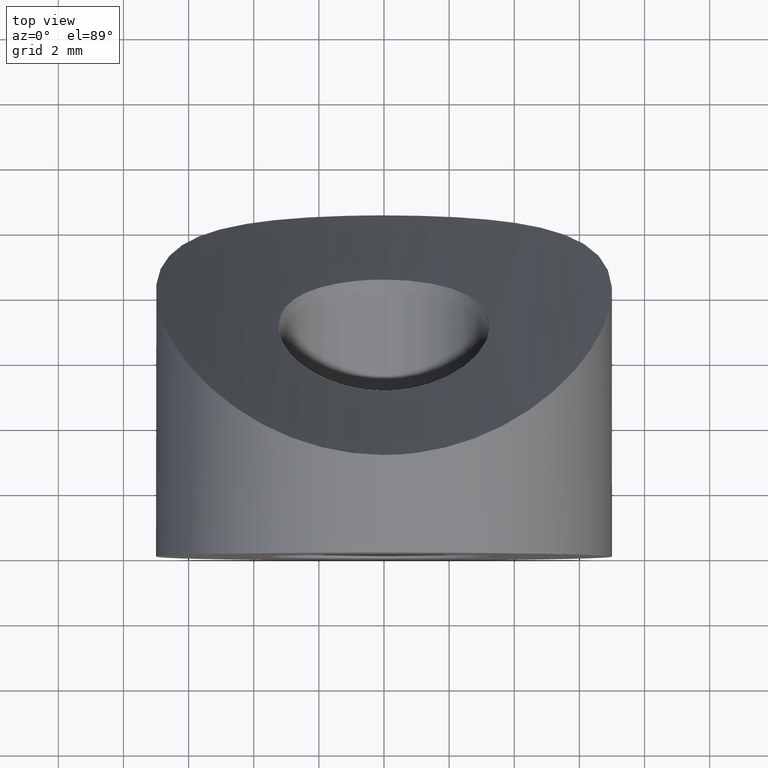
[diagram: clean part render]
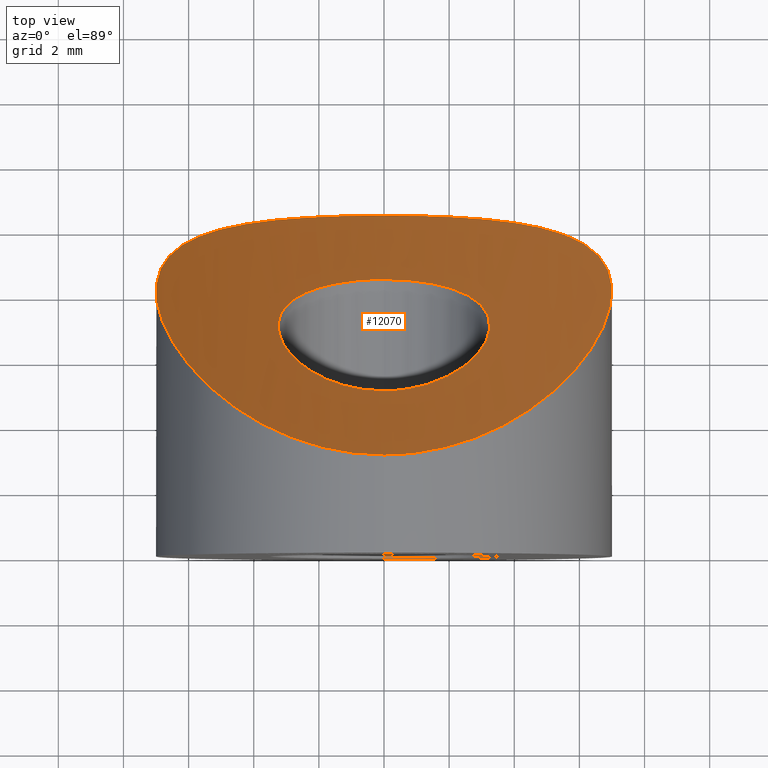
[diagram: same view with one face highlighted and labeled with its STEP entity id]
A machine part, top view. The second image highlights one B-rep face of the part: STEP entity #12070.
In plain terms, the highlighted cylindrical surface (partial cylindrical patch) has radius 21.2 mm, axis along (-0, 0.4772, -0.8788).
Its self-contained STEP definition (entity closure, byte-faithful):
#184 = ORIENTED_EDGE ( 'NONE', *, *, #11007, .T. ) ;
#472 = B_SPLINE_CURVE_WITH_KNOTS ( 'NONE', 3,
 ( #5123, #10411, #6013, #7213, #11307, #9237, #2918, #7031, #11352, #9194, #3929, #6065, #10322, #1927, #5002, #12504, #13441, #2831, #749, #13480, #7122, #10238, #833, #6150, #11433, #4067, #13564, #9319, #8198, #12459, #9277, #3972, #5973, #13523, #7167, #9371, #11487, #3883, #5038, #11393, #12379, #13397, #916, #878, #8244, #5081 ),
 .UNSPECIFIED., .F., .F.,
 ( 4, 2, 2, 2, 2, 2, 2, 2, 2, 2, 2, 2, 2, 2, 2, 2, 2, 2, 2, 2, 2, 2, 4 ),
 ( 0.0000000000000000000, 0.001474315538317101100, 0.002948631076634202200, 0.004422946614951303100, 0.005160104384109852900, 0.005897262153268402600, 0.006634419922426952400, 0.007371577691585501400, 0.008845893229902600900, 0.009583050999061152500, 0.01032020876821970600, 0.01179452430653681000, 0.01326883984485391700, 0.01400599761401247000, 0.01474315538317102400, 0.01621747092148812700, 0.01695462869064667800, 0.01769178645980523300, 0.01916610199812234000, 0.02064041753643944600, 0.02137757530559799800, 0.02211473307475655300, 0.02358904861307365900 ),
 .UNSPECIFIED. ) ;
#521 = CARTESIAN_POINT ( 'NONE',  ( 3.979939262421096800E-016, 5.035393976175074100, 3.250000000000000400 ) ) ;
#634 = CARTESIAN_POINT ( 'NONE',  ( 2.892975460072027400, 7.837656305663477600, -1.496116223524696100 ) ) ;
#749 = CARTESIAN_POINT ( 'NONE',  ( 6.770594678604483700, 9.036062907101127800, -1.791723785767992400 ) ) ;
#785 = CARTESIAN_POINT ( 'NONE',  ( -1.963054640487438300, 10.55535037021913200, -6.737228743966025700 ) ) ;
#826 = CARTESIAN_POINT ( 'NONE',  ( -2.429422027834667700, 10.52785955559408900, -6.583432806244323900 ) ) ;
#833 = CARTESIAN_POINT ( 'NONE',  ( 7.013235880452178600, 8.176464968063660500, -0.03361544823270118400 ) ) ;
#868 = CARTESIAN_POINT ( 'NONE',  ( -2.398664887283789700, 3.370443996117294300, 6.592601935012975600 ) ) ;
#878 = CARTESIAN_POINT ( 'NONE',  ( 0.9794534915576735800, 3.046920426225056200, 6.948377241447683000 ) ) ;
#916 = CARTESIAN_POINT ( 'NONE',  ( 1.697100583355313200, 3.186181835987563500, 6.795562409975588000 ) ) ;
#993 = CARTESIAN_POINT ( 'NONE',  ( -1.109604549217515100, 5.169073901962677900, 3.062666917213188200 ) ) ;
#1657 = CARTESIAN_POINT ( 'NONE',  ( 2.203863897364467700, 5.628380550321610400, 2.397548882988722600 ) ) ;
#1762 = CARTESIAN_POINT ( 'NONE',  ( -3.104336549737470200, 10.46776907150203000, -6.278854538200400600 ) ) ;
#1798 = CARTESIAN_POINT ( 'NONE',  ( 3.979939262421096800E-016, 5.035393976175074100, 3.250000000000000400 ) ) ;
#1806 = CARTESIAN_POINT ( 'NONE',  ( -1.228148890896225700, 3.094957949352621400, 6.895668455694219800 ) ) ;
#1820 = CARTESIAN_POINT ( 'NONE',  ( 3.241054785044858600, 7.254448937073717300, -0.3147625908589871100 ) ) ;
#1842 = CARTESIAN_POINT ( 'NONE',  ( -0.9978013944465682300, 10.59186766207333900, -6.946094373624778700 ) ) ;
#1860 = DIRECTION ( 'NONE',  ( -0.0000000000000000000, 0.4771587602596096800, -0.8788171126619647200 ) ) ;
#1868 = CARTESIAN_POINT ( 'NONE',  ( -2.672941581978505200, 8.002600963212549000, -1.860971190111637900 ) ) ;
#1877 = CARTESIAN_POINT ( 'NONE',  ( -3.036546965280483500, 3.620695096840181600, 6.311369178427301400 ) ) ;
#1927 = CARTESIAN_POINT ( 'NONE',  ( 5.811608423324605300, 9.846113192962537400, -3.909324757547954400 ) ) ;
#2087 = CARTESIAN_POINT ( 'NONE',  ( -1.531310926394326300, 8.423085640482273800, -2.875378245535597200 ) ) ;
#2508 = B_SPLINE_CURVE_WITH_KNOTS ( 'NONE', 3,
 ( #1798, #2813, #3914, #10353, #993, #6048, #3999, #13466, #11513, #3032, #8317, #9437, #12572, #12485, #7198, #7103, #5024, #8180, #7151, #10439, #11418, #1868, #10396, #4051, #11467, #4098, #2087, #10532, #9577, #9628, #12665, #4186 ),
 .UNSPECIFIED., .F., .F.,
 ( 4, 2, 2, 2, 2, 2, 2, 2, 2, 2, 2, 2, 2, 2, 2, 4 ),
 ( 0.01089618234621181500, 0.01157602525248070000, 0.01225586815874958600, 0.01293571106501847100, 0.01361555397128735500, 0.01429539687755624100, 0.01497523978382512400, 0.01633492559636289700, 0.01701476850263178000, 0.01769461140890066200, 0.01837445431516954500, 0.01905429722143843100, 0.01973414012770731400, 0.02041398303397620000, 0.02109382594024508000, 0.02177366884651396600 ),
 .UNSPECIFIED. ) ;
#2719 = CARTESIAN_POINT ( 'NONE',  ( 2.249620588345239800, 8.214595940458608000, -2.355592107772810800 ) ) ;
#2813 = CARTESIAN_POINT ( 'NONE',  ( -0.2267735953447817000, 5.035393976175073200, 3.250000000000000900 ) ) ;
#2823 = CARTESIAN_POINT ( 'NONE',  ( -6.298104035302205100, 9.565793292662462500, -3.091189089994581100 ) ) ;
#2831 = CARTESIAN_POINT ( 'NONE',  ( 6.708054917636709500, 9.132632332158838300, -2.013688080258984000 ) ) ;
#2866 = CARTESIAN_POINT ( 'NONE',  ( -5.566950340264313000, 5.329660144969657200, 4.264179286748681200 ) ) ;
#2913 = CARTESIAN_POINT ( 'NONE',  ( -6.034160235997791900, 5.856419595760873300, 3.572544097251774400 ) ) ;
#2918 = CARTESIAN_POINT ( 'NONE',  ( 3.744271798746342700, 10.39711558962667200, -5.934816483502738800 ) ) ;
#3032 = CARTESIAN_POINT ( 'NONE',  ( -2.491605459514739400, 5.828161368441853600, 2.096808612245306200 ) ) ;
#3624 = CARTESIAN_POINT ( 'NONE',  ( 8.572527595924596400E-016, 2.999310102530931200, 7.000000000000000000 ) ) ;
#3665 = CARTESIAN_POINT ( 'NONE',  ( 8.572527595924596400E-016, 2.999310102530931200, 7.000000000000000000 ) ) ;
#3725 = CARTESIAN_POINT ( 'NONE',  ( 1.118984921809289500, 8.493695850747530000, -3.059561037267732400 ) ) ;
#3766 = CARTESIAN_POINT ( 'NONE',  ( 0.8982085508059707300, 5.120103049954381400, 3.131488643865544000 ) ) ;
#3805 = CARTESIAN_POINT ( 'NONE',  ( 2.085652600937257400, 8.274891025992626900, -2.502527301729229300 ) ) ;
#3875 = CARTESIAN_POINT ( 'NONE',  ( -4.894101674813471800, 10.17125270580954000, -5.010691143654900000 ) ) ;
#3883 = CARTESIAN_POINT ( 'NONE',  ( 3.641900299066556100, 3.900251462224082500, 5.994325983543516800 ) ) ;
#3914 = CARTESIAN_POINT ( 'NONE',  ( -0.4551786877471316600, 5.052702973973863400, 3.225932735812153700 ) ) ;
#3922 = CARTESIAN_POINT ( 'NONE',  ( -0.9873364735729619500, 3.059484138445236900, 6.934404837675019800 ) ) ;
#3929 = CARTESIAN_POINT ( 'NONE',  ( 5.059322672565411200, 10.12615027093803900, -4.843660395887956000 ) ) ;
#3961 = VERTEX_POINT ( 'NONE', #3624 ) ;
#3962 = CARTESIAN_POINT ( 'NONE',  ( -6.964382305766500600, 7.691284753999823000, 0.8242255331129246800 ) ) ;
#3972 = CARTESIAN_POINT ( 'NONE',  ( 5.680076777937173900, 5.457446693119622200, 4.096321406783468800 ) ) ;
#3999 = CARTESIAN_POINT ( 'NONE',  ( -1.701802829723031700, 5.369295867338260000, 2.776913436658580400 ) ) ;
#4003 = EDGE_CURVE ( 'NONE', #9500, #3961, #472, .T. ) ;
#4038 = ORIENTED_EDGE ( 'NONE', *, *, #9424, .T. ) ;
#4051 = CARTESIAN_POINT ( 'NONE',  ( -2.250719509181120500, 8.214115703888134900, -2.354451566661326400 ) ) ;
#4067 = CARTESIAN_POINT ( 'NONE',  ( 6.752291559585696500, 7.047678365223997200, 1.857524813851149100 ) ) ;
#4098 = CARTESIAN_POINT ( 'NONE',  ( -1.726057189348559000, 8.379288636174223400, -2.762821752976151000 ) ) ;
#4110 = CARTESIAN_POINT ( 'NONE',  ( 0.0000000000000000000, 10.60068989746907400, -7.000000000000000000 ) ) ;
#4186 = CARTESIAN_POINT ( 'NONE',  ( 0.0000000000000000000, 8.564606023824930900, -3.250000000000000400 ) ) ;
#4797 = CARTESIAN_POINT ( 'NONE',  ( 3.155069600915283400, 6.592192222812481200, 0.8763184489439079800 ) ) ;
#4843 = CARTESIAN_POINT ( 'NONE',  ( 2.848544604854979800, 6.141236594280929500, 1.614989735178143900 ) ) ;
#4950 = CARTESIAN_POINT ( 'NONE',  ( -4.534202660878510600, 10.25586985209504900, -5.338563774143373100 ) ) ;
#4969 = CARTESIAN_POINT ( 'NONE',  ( 3.125334148901368600, 7.560517536100491900, -0.9155091929148538900 ) ) ;
#5002 = CARTESIAN_POINT ( 'NONE',  ( 5.942639922790501600, 9.779389482918681200, -3.706891497662024200 ) ) ;
#5024 = CARTESIAN_POINT ( 'NONE',  ( -3.240797429513224200, 7.256295680362845800, -0.3182489818234684500 ) ) ;
#5031 = CARTESIAN_POINT ( 'NONE',  ( -5.827548846044991600, 9.848704558034251400, -3.906563563613316700 ) ) ;
#5038 = CARTESIAN_POINT ( 'NONE',  ( 3.240819950511467900, 3.700278639392859500, 6.221970975363006100 ) ) ;
#5081 = CARTESIAN_POINT ( 'NONE',  ( 8.572527595924596400E-016, 2.999310102530931200, 7.000000000000000000 ) ) ;
#5123 = CARTESIAN_POINT ( 'NONE',  ( 0.0000000000000000000, 10.60068989746907400, -7.000000000000000000 ) ) ;
#5852 = CARTESIAN_POINT ( 'NONE',  ( 1.510087044550711500, 5.293088815966766200, 2.886233063069130600 ) ) ;
#5895 = CARTESIAN_POINT ( 'NONE',  ( 2.982923574716027200, 7.749444621676289600, -1.306919114560653100 ) ) ;
#5967 = CARTESIAN_POINT ( 'NONE',  ( -3.954174698842155800, 10.36123914404402200, -5.781327236983308600 ) ) ;
#5973 = CARTESIAN_POINT ( 'NONE',  ( 5.555484026391921400, 5.327367022880828500, 4.263918444414103200 ) ) ;
#6005 = CARTESIAN_POINT ( 'NONE',  ( -6.492153381974373100, 9.401168471638218400, -2.657413415642834800 ) ) ;
#6013 = CARTESIAN_POINT ( 'NONE',  ( 0.9878984886414214900, 10.59207546340010900, -6.947356308751158100 ) ) ;
#6028 = CARTESIAN_POINT ( 'NONE',  ( 1.529591533842127100, 8.423463584265766400, -2.876350245641486200 ) ) ;
#6048 = CARTESIAN_POINT ( 'NONE',  ( -1.513235060643662200, 5.294188923501820000, 2.884661254406677900 ) ) ;
#6057 = CARTESIAN_POINT ( 'NONE',  ( -5.550273157060508400, 9.969201685948839000, -4.292928570267518400 ) ) ;
#6065 = CARTESIAN_POINT ( 'NONE',  ( 5.379700233170018100, 10.02410318004033800, -4.485155218836728100 ) ) ;
#6150 = CARTESIAN_POINT ( 'NONE',  ( 6.964154476261475300, 7.688628393688798500, 0.8289511107351261700 ) ) ;
#6821 = FACE_BOUND ( 'NONE', #9841, .T. ) ;
#6846 = CARTESIAN_POINT ( 'NONE',  ( -0.2464751579487212400, 2.999310102530932100, 7.000000000000000900 ) ) ;
#6868 = CARTESIAN_POINT ( 'NONE',  ( 2.673492920481357800, 8.002228680888299200, -1.860136116258381600 ) ) ;
#6954 = CARTESIAN_POINT ( 'NONE',  ( 0.2271633659222790900, 5.035393976175071500, 3.250000000000001300 ) ) ;
#7001 = CARTESIAN_POINT ( 'NONE',  ( 1.108177772620068600, 5.168757365260226800, 3.063110543343831300 ) ) ;
#7031 = CARTESIAN_POINT ( 'NONE',  ( 4.338768487154998100, 10.29503089189734800, -5.498680979453775200 ) ) ;
#7049 = DIRECTION ( 'NONE',  ( 0.0000000000000000000, 0.8788171126619647200, 0.4771587602596096300 ) ) ;
#7067 = CARTESIAN_POINT ( 'NONE',  ( -7.000794283566611900, 8.052608274183297600, 0.1853956762124669100 ) ) ;
#7103 = CARTESIAN_POINT ( 'NONE',  ( -3.253908731613381500, 7.150126907915393700, -0.1183980777338185800 ) ) ;
#7116 = CARTESIAN_POINT ( 'NONE',  ( -3.750183854106616800, 10.39118299338020700, -5.915789609080668800 ) ) ;
#7122 = CARTESIAN_POINT ( 'NONE',  ( 6.911638796294967700, 8.731868048729293000, -1.130587376461380500 ) ) ;
#7151 = CARTESIAN_POINT ( 'NONE',  ( -3.123539752796126800, 7.563249789943003300, -0.9210975898789601800 ) ) ;
#7158 = CARTESIAN_POINT ( 'NONE',  ( -0.4978364498566462700, 10.60068989746907600, -7.000000000000001800 ) ) ;
#7167 = CARTESIAN_POINT ( 'NONE',  ( 5.146303505610000600, 4.941918162679060700, 4.749889233369812800 ) ) ;
#7198 = CARTESIAN_POINT ( 'NONE',  ( -3.239218117723875200, 6.824147230644648200, 0.4772070197858436800 ) ) ;
#7213 = CARTESIAN_POINT ( 'NONE',  ( 1.949281730393933600, 10.55603420736774600, -6.741068449449014300 ) ) ;
#7647 = CYLINDRICAL_SURFACE ( 'NONE', #10047, 21.20000000000000300 ) ;
#7945 = CARTESIAN_POINT ( 'NONE',  ( 0.4586673354559900900, 5.053148332071860900, 3.225309908022099900 ) ) ;
#7994 = CARTESIAN_POINT ( 'NONE',  ( 3.254241914500597400, 7.147822791705943100, -0.1140462332643476800 ) ) ;
#8017 = B_SPLINE_CURVE_WITH_KNOTS ( 'NONE', 3,
 ( #11136, #9067, #9204, #10169, #3725, #6028, #12261, #3805, #2719, #10127, #6868, #634, #5895, #4969, #8125, #1820, #7994, #8079, #4797, #4843, #10246, #1657, #11228, #13329, #5852, #7001, #3766, #7945, #6954, #11179 ),
 .UNSPECIFIED., .F., .F.,
 ( 4, 2, 2, 2, 2, 2, 2, 2, 2, 2, 2, 2, 2, 2, 4 ),
 ( 0.0000000000000000000, 0.0006810113966382381300, 0.001362022793276476300, 0.002043034189914714600, 0.002724045586552952500, 0.003405056983191190800, 0.004086068379829429200, 0.004767079776467666700, 0.005448091173105905000, 0.006810113966382383400, 0.008172136759658861800, 0.008853148156297100200, 0.009534159552935338500, 0.01021517094957357700, 0.01089618234621181500 ),
 .UNSPECIFIED. ) ;
#8050 = B_SPLINE_CURVE_WITH_KNOTS ( 'NONE', 3,
 ( #3665, #6846, #8190, #3922, #1806, #13473, #868, #1877, #9274, #9138, #9182, #12493, #11300, #9230, #2866, #2913, #11342, #8146, #9312, #10270, #3962, #7067, #10312, #10231, #8235, #12412, #11387, #6005, #2823, #5031, #6057, #12453, #3875, #4950, #13516, #5967, #7116, #12373, #1762, #826, #785, #1842, #7158, #11256 ),
 .UNSPECIFIED., .F., .F.,
 ( 4, 2, 2, 2, 2, 2, 2, 2, 2, 2, 2, 2, 2, 2, 2, 2, 2, 2, 2, 2, 2, 4 ),
 ( 0.02358904861307365900, 0.02432525439597219400, 0.02506146017887072800, 0.02653387174466780000, 0.02727007752756633500, 0.02800628331046486900, 0.02947869487626193800, 0.03095110644205900700, 0.03242351800785607500, 0.03389592957365314400, 0.03536834113945021300, 0.03610454692234875400, 0.03684075270524728900, 0.03831316427104436400, 0.03978557583684144000, 0.04125798740263850900, 0.04199419318553705000, 0.04273039896843558400, 0.04346660475133412600, 0.04420281053423266000, 0.04567522210002973600, 0.04714763366582681200 ),
 .UNSPECIFIED. ) ;
#8079 = CARTESIAN_POINT ( 'NONE',  ( 3.237992543934536700, 6.816878571240953200, 0.4901960945188390500 ) ) ;
#8125 = CARTESIAN_POINT ( 'NONE',  ( 3.176908576553936200, 7.460407552193814200, -0.7146772029976108400 ) ) ;
#8146 = CARTESIAN_POINT ( 'NONE',  ( -6.569606108069328000, 6.655314706468018900, 2.451990167185486200 ) ) ;
#8180 = CARTESIAN_POINT ( 'NONE',  ( -3.175635705791485900, 7.463449650144234200, -0.7206859632831855700 ) ) ;
#8190 = CARTESIAN_POINT ( 'NONE',  ( -0.4969475987638539100, 3.011549160646709700, 6.986690693661844700 ) ) ;
#8198 = CARTESIAN_POINT ( 'NONE',  ( 6.482603309485393000, 6.516780166157502700, 2.649348458176600500 ) ) ;
#8235 = CARTESIAN_POINT ( 'NONE',  ( -6.969577154654547100, 8.514839100517987100, -0.6887989745555076500 ) ) ;
#8244 = CARTESIAN_POINT ( 'NONE',  ( 0.4935877489881745400, 2.999310102530933400, 7.000000000000001800 ) ) ;
#8317 = CARTESIAN_POINT ( 'NONE',  ( -2.616923170015498500, 5.932042269575936700, 1.937763797466362400 ) ) ;
#8332 = EDGE_LOOP ( 'NONE', ( #8821, #9617 ) ) ;
#8821 = ORIENTED_EDGE ( 'NONE', *, *, #4003, .F. ) ;
#8973 = VERTEX_POINT ( 'NONE', #521 ) ;
#9067 = CARTESIAN_POINT ( 'NONE',  ( 0.2303349561270087700, 8.564606023824930900, -3.250000000000000900 ) ) ;
#9138 = CARTESIAN_POINT ( 'NONE',  ( -3.638257915258539000, 3.907446899714217500, 5.984555877532983500 ) ) ;
#9182 = CARTESIAN_POINT ( 'NONE',  ( -3.830083260779034500, 4.012442436077511900, 5.863418104700211400 ) ) ;
#9194 = CARTESIAN_POINT ( 'NONE',  ( 4.889422322986293400, 10.17246132928159400, -5.015240228211454500 ) ) ;
#9204 = CARTESIAN_POINT ( 'NONE',  ( 0.4562360468771661800, 8.555727348345833100, -3.225789418490302700 ) ) ;
#9230 = CARTESIAN_POINT ( 'NONE',  ( -5.298243257005527300, 5.068294425062777700, 4.594496442934847400 ) ) ;
#9237 = CARTESIAN_POINT ( 'NONE',  ( 3.321925011872370900, 10.44850770307659400, -6.181105687898035100 ) ) ;
#9274 = CARTESIAN_POINT ( 'NONE',  ( -3.241708545144176100, 3.711754884034618400, 6.208313411675925800 ) ) ;
#9277 = CARTESIAN_POINT ( 'NONE',  ( 6.029328546474610000, 5.850501963597210400, 3.580458401154923600 ) ) ;
#9294 = CARTESIAN_POINT ( 'NONE',  ( 0.0000000000000000000, 8.564606023824930900, -3.250000000000000400 ) ) ;
#9312 = CARTESIAN_POINT ( 'NONE',  ( -6.705340974688216000, 6.923642147121394300, 2.052618164200293200 ) ) ;
#9319 = CARTESIAN_POINT ( 'NONE',  ( 6.559113213218739500, 6.651109167932048600, 2.453922648573575700 ) ) ;
#9371 = CARTESIAN_POINT ( 'NONE',  ( 4.696199112599249900, 4.568668223860346000, 5.208575995352950900 ) ) ;
#9424 = EDGE_CURVE ( 'NONE', #8973, #12750, #2508, .T. ) ;
#9437 = CARTESIAN_POINT ( 'NONE',  ( -2.836519035984395000, 6.148286568643965400, 1.599179530582285300 ) ) ;
#9500 = VERTEX_POINT ( 'NONE', #4110 ) ;
#9577 = CARTESIAN_POINT ( 'NONE',  ( -0.9040132759079383400, 8.520096762168071400, -3.130080349590821200 ) ) ;
#9617 = ORIENTED_EDGE ( 'NONE', *, *, #13417, .F. ) ;
#9628 = CARTESIAN_POINT ( 'NONE',  ( -0.4574468057230723400, 8.555709704441277100, -3.225737964845588400 ) ) ;
#9841 = EDGE_LOOP ( 'NONE', ( #184, #4038 ) ) ;
#10047 = AXIS2_PLACEMENT_3D ( 'NONE', #12478, #1860, #7049 ) ;
#10127 = CARTESIAN_POINT ( 'NONE',  ( 2.542869052951185300, 8.078781806277030200, -2.035540210669265300 ) ) ;
#10169 = CARTESIAN_POINT ( 'NONE',  ( 0.8995589247164902400, 8.520529899350510300, -3.131239761480588200 ) ) ;
#10231 = CARTESIAN_POINT ( 'NONE',  ( -6.987836151917358400, 8.401550812205195800, -0.4667624275116379900 ) ) ;
#10238 = CARTESIAN_POINT ( 'NONE',  ( 6.998060108509077900, 8.408519869428840100, -0.4723022154808646500 ) ) ;
#10246 = CARTESIAN_POINT ( 'NONE',  ( 2.632985991241841600, 5.925990979870879200, 1.949592692750625500 ) ) ;
#10270 = CARTESIAN_POINT ( 'NONE',  ( -6.902009882265338600, 7.440798732590698400, 1.239797765746201200 ) ) ;
#10312 = CARTESIAN_POINT ( 'NONE',  ( -7.003343001908721300, 8.170648864080281000, -0.03013382478106338800 ) ) ;
#10322 = CARTESIAN_POINT ( 'NONE',  ( 5.530176011040410300, 9.968368302969311800, -4.298228217876298300 ) ) ;
#10353 = CARTESIAN_POINT ( 'NONE',  ( -0.8983664528508942300, 5.120041684483238600, 3.131575860514286300 ) ) ;
#10396 = CARTESIAN_POINT ( 'NONE',  ( -2.542578814333325000, 8.078887432749484200, -2.035797991369926700 ) ) ;
#10411 = CARTESIAN_POINT ( 'NONE',  ( 0.4984802011976530700, 10.60068989746907400, -7.000000000000000000 ) ) ;
#10439 = CARTESIAN_POINT ( 'NONE',  ( -2.982270769135502600, 7.749952759310669800, -1.308045265630531000 ) ) ;
#10458 = FACE_OUTER_BOUND ( 'NONE', #8332, .T. ) ;
#10532 = CARTESIAN_POINT ( 'NONE',  ( -1.122189649179461400, 8.493230544811902800, -3.058333467669685800 ) ) ;
#11007 = EDGE_CURVE ( 'NONE', #12750, #8973, #8017, .T. ) ;
#11136 = CARTESIAN_POINT ( 'NONE',  ( 0.0000000000000000000, 8.564606023824930900, -3.250000000000000400 ) ) ;
#11179 = CARTESIAN_POINT ( 'NONE',  ( 3.979939262421096800E-016, 5.035393976175074100, 3.250000000000000400 ) ) ;
#11228 = CARTESIAN_POINT ( 'NONE',  ( 2.045411540383145000, 5.535642112998625700, 2.534441488414795900 ) ) ;
#11256 = CARTESIAN_POINT ( 'NONE',  ( 0.0000000000000000000, 10.60068989746907400, -7.000000000000000000 ) ) ;
#11300 = CARTESIAN_POINT ( 'NONE',  ( -4.703203021026729000, 4.574101942821914500, 5.201986208896611800 ) ) ;
#11307 = CARTESIAN_POINT ( 'NONE',  ( 2.426193286419977600, 10.52803424600410200, -6.584439189968974500 ) ) ;
#11342 = CARTESIAN_POINT ( 'NONE',  ( -6.234138253516075400, 6.122544559486203600, 3.210529618490322700 ) ) ;
#11352 = CARTESIAN_POINT ( 'NONE',  ( 4.529756806721169800, 10.25680390016441900, -5.342320513704732900 ) ) ;
#11387 = CARTESIAN_POINT ( 'NONE',  ( -6.783141481448273800, 9.038570245394600600, -1.788545006248248600 ) ) ;
#11393 = CARTESIAN_POINT ( 'NONE',  ( 2.602799287885538200, 3.450815443957643100, 6.502260765261245200 ) ) ;
#11418 = CARTESIAN_POINT ( 'NONE',  ( -2.892881837654596800, 7.837767507438111500, -1.496350608802445000 ) ) ;
#11433 = CARTESIAN_POINT ( 'NONE',  ( 6.900718366892465200, 7.436283536692041500, 1.247174799189336900 ) ) ;
#11467 = CARTESIAN_POINT ( 'NONE',  ( -2.088031759702284200, 8.274070508560186000, -2.500516112744455300 ) ) ;
#11487 = CARTESIAN_POINT ( 'NONE',  ( 4.366997946417799700, 4.333545501756357300, 5.488598247395118300 ) ) ;
#11513 = CARTESIAN_POINT ( 'NONE',  ( -2.207744867941333400, 5.630853946294339000, 2.393860213201356700 ) ) ;
#12070 = ADVANCED_FACE ( 'NONE', ( #6821, #10458 ), #7647, .F. ) ;
#12261 = CARTESIAN_POINT ( 'NONE',  ( 1.722924635848054800, 8.380068278218020700, -2.764800239960270900 ) ) ;
#12373 = CARTESIAN_POINT ( 'NONE',  ( -3.325901198742525500, 10.44440535814521600, -6.164318847586637100 ) ) ;
#12379 = CARTESIAN_POINT ( 'NONE',  ( 2.383703828126547900, 3.375712945707666000, 6.585927241897988600 ) ) ;
#12412 = CARTESIAN_POINT ( 'NONE',  ( -6.882919561443957300, 8.839820185368275000, -1.350265632687610800 ) ) ;
#12453 = CARTESIAN_POINT ( 'NONE',  ( -5.066976026240194400, 10.12398649681044900, -4.835746675163880700 ) ) ;
#12459 = CARTESIAN_POINT ( 'NONE',  ( 6.229706812565763300, 6.116254021652715700, 3.219242878915241000 ) ) ;
#12478 = CARTESIAN_POINT ( 'NONE',  ( 0.0000000000000000000, 20.94734851967575300, 18.37348227107075300 ) ) ;
#12485 = CARTESIAN_POINT ( 'NONE',  ( -3.155493808104845600, 6.594200533097700900, 0.8727930396966485600 ) ) ;
#12493 = CARTESIAN_POINT ( 'NONE',  ( -4.375437584530696500, 4.339126749912872500, 5.482005523891780600 ) ) ;
#12504 = CARTESIAN_POINT ( 'NONE',  ( 6.297847899912675900, 9.566182660432645000, -3.092113700867962700 ) ) ;
#12572 = CARTESIAN_POINT ( 'NONE',  ( -2.929439168816400300, 6.259575819054577800, 1.421262949628608200 ) ) ;
#12665 = CARTESIAN_POINT ( 'NONE',  ( -0.2299397436837390100, 8.564606023824932600, -3.250000000000000900 ) ) ;
#12750 = VERTEX_POINT ( 'NONE', #9294 ) ;
#13329 = CARTESIAN_POINT ( 'NONE',  ( 1.700208186348418200, 5.368651007330014700, 2.777839835340507600 ) ) ;
#13397 = CARTESIAN_POINT ( 'NONE',  ( 1.931529216488785400, 3.243526982414535600, 6.732434660778329400 ) ) ;
#13417 = EDGE_CURVE ( 'NONE', #3961, #9500, #8050, .T. ) ;
#13441 = CARTESIAN_POINT ( 'NONE',  ( 6.487982177795021100, 9.405341011367841700, -2.667929742523743800 ) ) ;
#13466 = CARTESIAN_POINT ( 'NONE',  ( -2.047896810653554700, 5.536972399453263800, 2.532488846740154700 ) ) ;
#13473 = CARTESIAN_POINT ( 'NONE',  ( -1.938251272794275300, 3.233432781851251400, 6.743704812621548000 ) ) ;
#13480 = CARTESIAN_POINT ( 'NONE',  ( 6.872196403760848500, 8.835845930552068200, -1.350608386828179300 ) ) ;
#13516 = CARTESIAN_POINT ( 'NONE',  ( -4.346184663904369700, 10.29358176735683000, -5.492715269999984600 ) ) ;
#13523 = CARTESIAN_POINT ( 'NONE',  ( 5.288943657226933900, 5.069878441659079200, 4.590367987295739900 ) ) ;
#13564 = CARTESIAN_POINT ( 'NONE',  ( 6.693863354514080700, 6.916462306032266300, 2.058129223371684800 ) ) ;